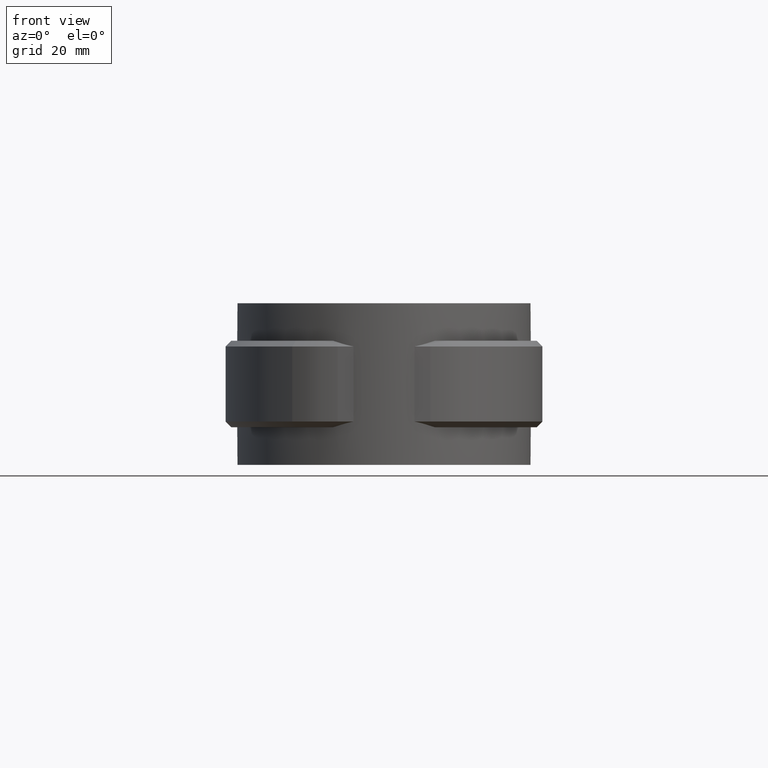
[diagram: clean part render]
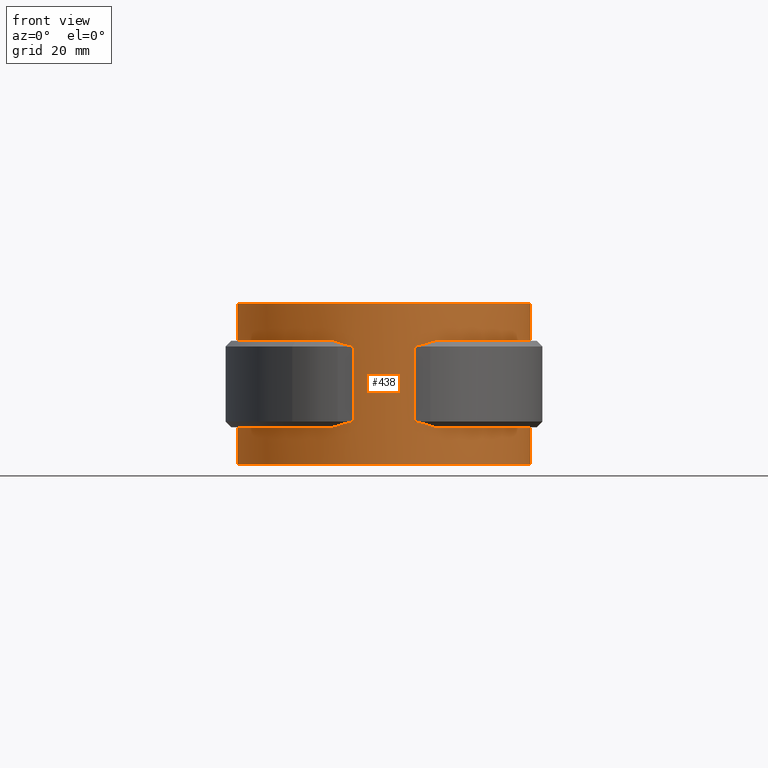
[diagram: same view with one face highlighted and labeled with its STEP entity id]
A machine part, front view. The second image highlights one B-rep face of the part: STEP entity #438.
In plain terms, the highlighted cylindrical surface (partial cylindrical patch) has radius 25.445 mm, axis along (0, 0, -1).
Its self-contained STEP definition (entity closure, byte-faithful):
#438 = ADVANCED_FACE( '', ( #860 ), #861, .T. );
#860 = FACE_OUTER_BOUND( '', #1969, .T. );
#861 = CYLINDRICAL_SURFACE( '', #1970, 25.4450000000000 );
#1969 = EDGE_LOOP( '', ( #4088, #4089, #4090, #4091, #4092, #4093, #4094, #4095, #4096, #4097, #4098, #4099, #4100, #4101, #4102, #4103, #4104, #4105, #4106, #4107 ) );
#1970 = AXIS2_PLACEMENT_3D( '', #4108, #4109, #4110 );
#4088 = ORIENTED_EDGE( '', *, *, #6871, .F. );
#4089 = ORIENTED_EDGE( '', *, *, #6872, .T. );
#4090 = ORIENTED_EDGE( '', *, *, #6873, .T. );
#4091 = ORIENTED_EDGE( '', *, *, #6874, .F. );
#4092 = ORIENTED_EDGE( '', *, *, #6875, .T. );
#4093 = ORIENTED_EDGE( '', *, *, #6876, .T. );
#4094 = ORIENTED_EDGE( '', *, *, #6877, .T. );
#4095 = ORIENTED_EDGE( '', *, *, #6878, .F. );
#4096 = ORIENTED_EDGE( '', *, *, #6879, .T. );
#4097 = ORIENTED_EDGE( '', *, *, #6880, .T. );
#4098 = ORIENTED_EDGE( '', *, *, #6881, .F. );
#4099 = ORIENTED_EDGE( '', *, *, #6882, .T. );
#4100 = ORIENTED_EDGE( '', *, *, #6883, .T. );
#4101 = ORIENTED_EDGE( '', *, *, #6884, .T. );
#4102 = ORIENTED_EDGE( '', *, *, #6885, .T. );
#4103 = ORIENTED_EDGE( '', *, *, #6870, .T. );
#4104 = ORIENTED_EDGE( '', *, *, #6886, .T. );
#4105 = ORIENTED_EDGE( '', *, *, #6887, .T. );
#4106 = ORIENTED_EDGE( '', *, *, #6888, .F. );
#4107 = ORIENTED_EDGE( '', *, *, #6889, .F. );
#4108 = CARTESIAN_POINT( '', ( -4.33680868994202E-015, 0.000000000000000, -26.5000000000000 ) );
#4109 = DIRECTION( '', ( 0.000000000000000, 0.000000000000000, -1.00000000000000 ) );
#4110 = DIRECTION( '', ( -1.00000000000000, 6.07153216591882E-017, 0.000000000000000 ) );
#6870 = EDGE_CURVE( '', #8008, #8014, #8016, .T. );
#6871 = EDGE_CURVE( '', #8017, #8018, #8019, .T. );
#6872 = EDGE_CURVE( '', #8017, #8020, #8021, .F. );
#6873 = EDGE_CURVE( '', #8020, #8022, #8023, .T. );
#6874 = EDGE_CURVE( '', #8024, #8022, #8025, .T. );
#6875 = EDGE_CURVE( '', #8024, #8026, #8027, .F. );
#6876 = EDGE_CURVE( '', #8026, #8028, #8029, .T. );
#6877 = EDGE_CURVE( '', #8028, #8030, #8031, .T. );
#6878 = EDGE_CURVE( '', #8032, #8030, #8033, .T. );
#6879 = EDGE_CURVE( '', #8032, #8034, #8035, .T. );
#6880 = EDGE_CURVE( '', #8034, #8036, #8037, .T. );
#6881 = EDGE_CURVE( '', #8038, #8036, #8039, .T. );
#6882 = EDGE_CURVE( '', #8038, #8040, #8041, .F. );
#6883 = EDGE_CURVE( '', #8040, #8042, #8043, .F. );
#6884 = EDGE_CURVE( '', #8042, #8044, #8045, .T. );
#6885 = EDGE_CURVE( '', #8044, #8008, #8046, .T. );
#6886 = EDGE_CURVE( '', #8014, #8047, #8048, .T. );
#6887 = EDGE_CURVE( '', #8047, #8049, #8050, .T. );
#6888 = EDGE_CURVE( '', #8051, #8049, #8052, .T. );
#6889 = EDGE_CURVE( '', #8018, #8051, #8053, .T. );
#8008 = VERTEX_POINT( '', #11272 );
#8014 = VERTEX_POINT( '', #11280 );
#8016 = B_SPLINE_CURVE_WITH_KNOTS( '', 3, ( #11282, #11283, #11284, #11285 ), .UNSPECIFIED., .F., .F., ( 4, 4 ), ( 0.00657948707591086, 0.00747501353473143 ), .UNSPECIFIED. );
#8017 = VERTEX_POINT( '', #11286 );
#8018 = VERTEX_POINT( '', #11287 );
#8019 = CIRCLE( '', #11288, 25.4450000000000 );
#8020 = VERTEX_POINT( '', #11289 );
#8021 = B_SPLINE_CURVE_WITH_KNOTS( '', 3, ( #11290, #11291, #11292, #11293 ), .UNSPECIFIED., .F., .F., ( 4, 4 ), ( 0.00657948707591086, 0.00747501353473143 ), .UNSPECIFIED. );
#8022 = VERTEX_POINT( '', #11294 );
#8023 = ELLIPSE( '', #11295, 35.9846640945834, 25.4450000000000 );
#8024 = VERTEX_POINT( '', #11296 );
#8025 = LINE( '', #11297, #11298 );
#8026 = VERTEX_POINT( '', #11299 );
#8027 = ELLIPSE( '', #11300, 35.9846640945835, 25.4450000000000 );
#8028 = VERTEX_POINT( '', #11301 );
#8029 = B_SPLINE_CURVE_WITH_KNOTS( '', 3, ( #11302, #11303, #11304, #11305 ), .UNSPECIFIED., .F., .F., ( 4, 4 ), ( 0.00657948707591089, 0.00747501353473144 ), .UNSPECIFIED. );
#8030 = VERTEX_POINT( '', #11306 );
#8031 = CIRCLE( '', #11307, 25.4450000000000 );
#8032 = VERTEX_POINT( '', #11308 );
#8033 = LINE( '', #11309, #11310 );
#8034 = VERTEX_POINT( '', #11311 );
#8035 = CIRCLE( '', #11312, 25.4450000000000 );
#8036 = VERTEX_POINT( '', #11313 );
#8037 = LINE( '', #11314, #11315 );
#8038 = VERTEX_POINT( '', #11316 );
#8039 = CIRCLE( '', #11317, 25.4450000000000 );
#8040 = VERTEX_POINT( '', #11318 );
#8041 = B_SPLINE_CURVE_WITH_KNOTS( '', 3, ( #11319, #11320, #11321, #11322 ), .UNSPECIFIED., .F., .F., ( 4, 4 ), ( 0.00657948707591087, 0.00747501353473143 ), .UNSPECIFIED. );
#8042 = VERTEX_POINT( '', #11323 );
#8043 = ELLIPSE( '', #11324, 35.9846640945835, 25.4450000000000 );
#8044 = VERTEX_POINT( '', #11325 );
#8045 = LINE( '', #11326, #11327 );
#8046 = ELLIPSE( '', #11328, 35.9846640945834, 25.4450000000000 );
#8047 = VERTEX_POINT( '', #11329 );
#8048 = CIRCLE( '', #11330, 25.4450000000000 );
#8049 = VERTEX_POINT( '', #11331 );
#8050 = LINE( '', #11332, #11333 );
#8051 = VERTEX_POINT( '', #11334 );
#8052 = CIRCLE( '', #11335, 25.4450000000000 );
#8053 = LINE( '', #11336, #11337 );
#11272 = CARTESIAN_POINT( '', ( 8.01373352439421, -24.1501159417507, -5.26011594175067 ) );
#11280 = CARTESIAN_POINT( '', ( 8.83075280515658, -23.8634831886340, -5.00000000000000 ) );
#11282 = CARTESIAN_POINT( '', ( 8.01373352439422, -24.1501159417507, -5.26011594175067 ) );
#11283 = CARTESIAN_POINT( '', ( 8.28581506658350, -24.0598311173933, -5.16983111739329 ) );
#11284 = CARTESIAN_POINT( '', ( 8.55812242759355, -23.9643708692968, -5.08299724458434 ) );
#11285 = CARTESIAN_POINT( '', ( 8.83075280515657, -23.8634831886340, -4.99999999999999 ) );
#11286 = CARTESIAN_POINT( '', ( -8.83075280515658, -23.8634831886340, -5.00000000000000 ) );
#11287 = CARTESIAN_POINT( '', ( -6.10000000000001, 24.7029962757557, -5.00000000000000 ) );
#11288 = AXIS2_PLACEMENT_3D( '', #13296, #13297, #13298 );
#11289 = CARTESIAN_POINT( '', ( -8.01373352439422, -24.1501159417507, -5.26011594175067 ) );
#11290 = CARTESIAN_POINT( '', ( -8.01373352439422, -24.1501159417507, -5.26011594175067 ) );
#11291 = CARTESIAN_POINT( '', ( -8.28581506658350, -24.0598311173933, -5.16983111739330 ) );
#11292 = CARTESIAN_POINT( '', ( -8.55812242759355, -23.9643708692968, -5.08299724458434 ) );
#11293 = CARTESIAN_POINT( '', ( -8.83075280515658, -23.8634831886340, -5.00000000000000 ) );
#11294 = CARTESIAN_POINT( '', ( -5.28544463597905, -24.8900000000000, -6.00000000000000 ) );
#11295 = AXIS2_PLACEMENT_3D( '', #13299, #13300, #13301 );
#11296 = CARTESIAN_POINT( '', ( -5.28544463597905, -24.8900000000000, -19.0000000000000 ) );
#11297 = CARTESIAN_POINT( '', ( -5.28544463597905, -24.8900000000000, -20.0000000000000 ) );
#11298 = VECTOR( '', #13302, 1000.00000000000 );
#11299 = CARTESIAN_POINT( '', ( -8.01373352439423, -24.1501159417507, -19.7398840582493 ) );
#11300 = AXIS2_PLACEMENT_3D( '', #13303, #13304, #13305 );
#11301 = CARTESIAN_POINT( '', ( -8.83075280515658, -23.8634831886340, -20.0000000000000 ) );
#11302 = CARTESIAN_POINT( '', ( -8.01373352439423, -24.1501159417507, -19.7398840582493 ) );
#11303 = CARTESIAN_POINT( '', ( -8.28581506658351, -24.0598311173933, -19.8301688826067 ) );
#11304 = CARTESIAN_POINT( '', ( -8.55812242759355, -23.9643708692968, -19.9170027554157 ) );
#11305 = CARTESIAN_POINT( '', ( -8.83075280515658, -23.8634831886340, -20.0000000000000 ) );
#11306 = CARTESIAN_POINT( '', ( -6.10000000000001, 24.7029962757557, -20.0000000000000 ) );
#11307 = AXIS2_PLACEMENT_3D( '', #13306, #13307, #13308 );
#11308 = CARTESIAN_POINT( '', ( -6.10000000000002, 24.7029962757557, -26.5000000000000 ) );
#11309 = CARTESIAN_POINT( '', ( -6.10000000000002, 24.7029962757557, -26.5000000000000 ) );
#11310 = VECTOR( '', #13309, 1000.00000000000 );
#11311 = CARTESIAN_POINT( '', ( 6.09999999999994, 24.7029962757557, -26.5000000000000 ) );
#11312 = AXIS2_PLACEMENT_3D( '', #13310, #13311, #13312 );
#11313 = CARTESIAN_POINT( '', ( 6.09999999999994, 24.7029962757557, -20.0000000000000 ) );
#11314 = CARTESIAN_POINT( '', ( 6.09999999999994, 24.7029962757557, -26.5000000000000 ) );
#11315 = VECTOR( '', #13313, 1000.00000000000 );
#11316 = CARTESIAN_POINT( '', ( 8.83075280515658, -23.8634831886340, -20.0000000000000 ) );
#11317 = AXIS2_PLACEMENT_3D( '', #13314, #13315, #13316 );
#11318 = CARTESIAN_POINT( '', ( 8.01373352439422, -24.1501159417507, -19.7398840582493 ) );
#11319 = CARTESIAN_POINT( '', ( 8.01373352439422, -24.1501159417507, -19.7398840582493 ) );
#11320 = CARTESIAN_POINT( '', ( 8.28581506658350, -24.0598311173933, -19.8301688826067 ) );
#11321 = CARTESIAN_POINT( '', ( 8.55812242759355, -23.9643708692968, -19.9170027554157 ) );
#11322 = CARTESIAN_POINT( '', ( 8.83075280515657, -23.8634831886340, -20.0000000000000 ) );
#11323 = CARTESIAN_POINT( '', ( 5.28544463597906, -24.8900000000000, -19.0000000000000 ) );
#11324 = AXIS2_PLACEMENT_3D( '', #13317, #13318, #13319 );
#11325 = CARTESIAN_POINT( '', ( 5.28544463597906, -24.8900000000000, -6.00000000000000 ) );
#11326 = CARTESIAN_POINT( '', ( 5.28544463597906, -24.8900000000000, -20.0000000000000 ) );
#11327 = VECTOR( '', #13320, 1000.00000000000 );
#11328 = AXIS2_PLACEMENT_3D( '', #13321, #13322, #13323 );
#11329 = CARTESIAN_POINT( '', ( 6.09999999999994, 24.7029962757557, -5.00000000000000 ) );
#11330 = AXIS2_PLACEMENT_3D( '', #13324, #13325, #13326 );
#11331 = CARTESIAN_POINT( '', ( 6.09999999999994, 24.7029962757557, 1.50000000000000 ) );
#11332 = CARTESIAN_POINT( '', ( 6.09999999999994, 24.7029962757557, -26.5000000000000 ) );
#11333 = VECTOR( '', #13327, 1000.00000000000 );
#11334 = CARTESIAN_POINT( '', ( -6.10000000000002, 24.7029962757557, 1.50000000000000 ) );
#11335 = AXIS2_PLACEMENT_3D( '', #13328, #13329, #13330 );
#11336 = CARTESIAN_POINT( '', ( -6.10000000000002, 24.7029962757557, -26.5000000000000 ) );
#11337 = VECTOR( '', #13331, 1000.00000000000 );
#13296 = CARTESIAN_POINT( '', ( -8.67361737988404E-016, -1.04083408558608E-014, -5.00000000000000 ) );
#13297 = DIRECTION( '', ( 0.000000000000000, 0.000000000000000, -1.00000000000000 ) );
#13298 = DIRECTION( '', ( 1.00000000000000, 0.000000000000000, 0.000000000000000 ) );
#13299 = CARTESIAN_POINT( '', ( -4.33680868994202E-015, 0.000000000000000, 18.8900000000000 ) );
#13300 = DIRECTION( '', ( 0.000000000000000, -0.707106781186548, 0.707106781186548 ) );
#13301 = DIRECTION( '', ( 0.000000000000000, 0.707106781186548, 0.707106781186548 ) );
#13302 = DIRECTION( '', ( 0.000000000000000, 0.000000000000000, 1.00000000000000 ) );
#13303 = CARTESIAN_POINT( '', ( -4.33680868994202E-015, 0.000000000000000, -43.8900000000001 ) );
#13304 = DIRECTION( '', ( 0.000000000000000, 0.707106781186549, 0.707106781186546 ) );
#13305 = DIRECTION( '', ( 0.000000000000000, -0.707106781186546, 0.707106781186549 ) );
#13306 = CARTESIAN_POINT( '', ( -8.67361737988404E-016, -1.04083408558608E-014, -20.0000000000000 ) );
#13307 = DIRECTION( '', ( 0.000000000000000, 0.000000000000000, -1.00000000000000 ) );
#13308 = DIRECTION( '', ( 1.00000000000000, 0.000000000000000, 0.000000000000000 ) );
#13309 = DIRECTION( '', ( 0.000000000000000, 0.000000000000000, 1.00000000000000 ) );
#13310 = CARTESIAN_POINT( '', ( -4.33680868994202E-015, 0.000000000000000, -26.5000000000000 ) );
#13311 = DIRECTION( '', ( 0.000000000000000, 0.000000000000000, 1.00000000000000 ) );
#13312 = DIRECTION( '', ( 1.00000000000000, -6.07153216591882E-017, 0.000000000000000 ) );
#13313 = DIRECTION( '', ( 0.000000000000000, 0.000000000000000, 1.00000000000000 ) );
#13314 = CARTESIAN_POINT( '', ( -8.67361737988404E-016, -1.04083408558608E-014, -20.0000000000000 ) );
#13315 = DIRECTION( '', ( 0.000000000000000, 0.000000000000000, 1.00000000000000 ) );
#13316 = DIRECTION( '', ( 1.00000000000000, 0.000000000000000, 0.000000000000000 ) );
#13317 = CARTESIAN_POINT( '', ( -4.33680868994202E-015, 0.000000000000000, -43.8900000000001 ) );
#13318 = DIRECTION( '', ( 0.000000000000000, 0.707106781186549, 0.707106781186546 ) );
#13319 = DIRECTION( '', ( 0.000000000000000, -0.707106781186546, 0.707106781186549 ) );
#13320 = DIRECTION( '', ( 0.000000000000000, 0.000000000000000, 1.00000000000000 ) );
#13321 = CARTESIAN_POINT( '', ( -4.33680868994202E-015, 0.000000000000000, 18.8900000000000 ) );
#13322 = DIRECTION( '', ( 0.000000000000000, -0.707106781186548, 0.707106781186548 ) );
#13323 = DIRECTION( '', ( 0.000000000000000, 0.707106781186548, 0.707106781186548 ) );
#13324 = CARTESIAN_POINT( '', ( -8.67361737988404E-016, -1.04083408558608E-014, -5.00000000000000 ) );
#13325 = DIRECTION( '', ( 0.000000000000000, 0.000000000000000, 1.00000000000000 ) );
#13326 = DIRECTION( '', ( 1.00000000000000, 0.000000000000000, 0.000000000000000 ) );
#13327 = DIRECTION( '', ( 0.000000000000000, 0.000000000000000, 1.00000000000000 ) );
#13328 = CARTESIAN_POINT( '', ( -4.33680868994202E-015, 0.000000000000000, 1.50000000000000 ) );
#13329 = DIRECTION( '', ( 0.000000000000000, 0.000000000000000, 1.00000000000000 ) );
#13330 = DIRECTION( '', ( 1.00000000000000, -6.07153216591882E-017, 0.000000000000000 ) );
#13331 = DIRECTION( '', ( 0.000000000000000, 0.000000000000000, 1.00000000000000 ) );